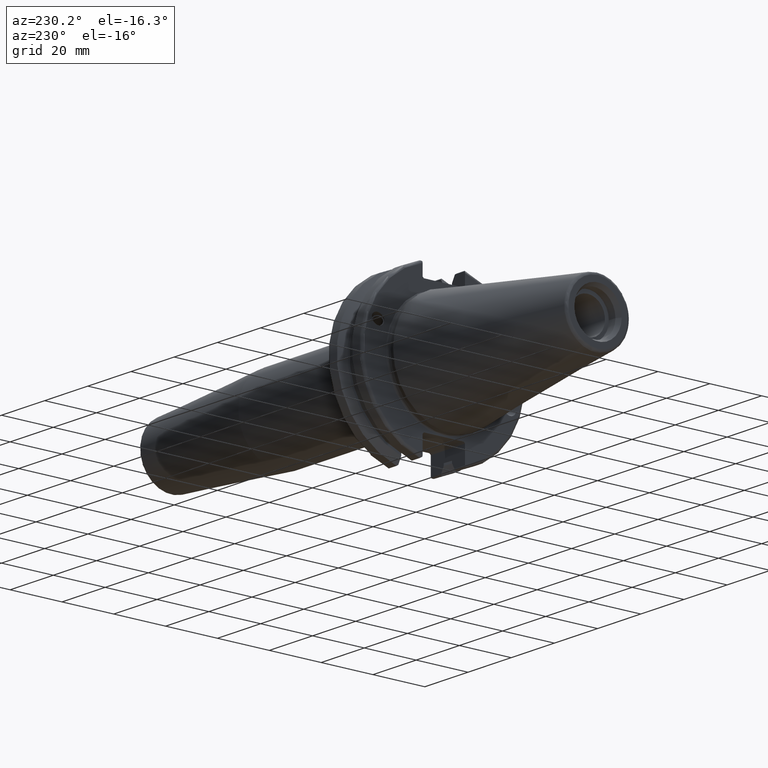
[diagram: clean part render]
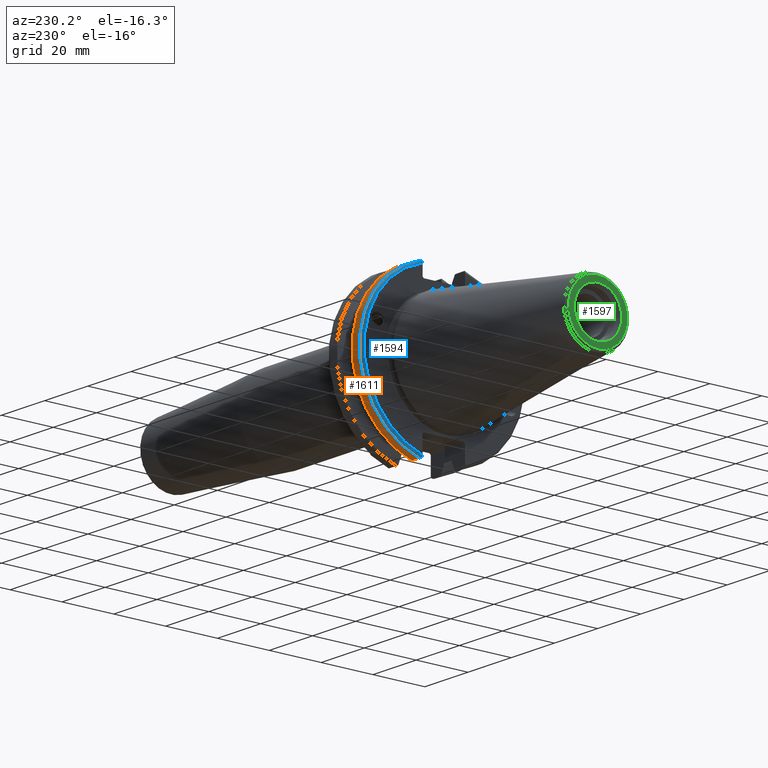
[diagram: same view with three faces highlighted in distinct colors, each labeled with its STEP entity id]
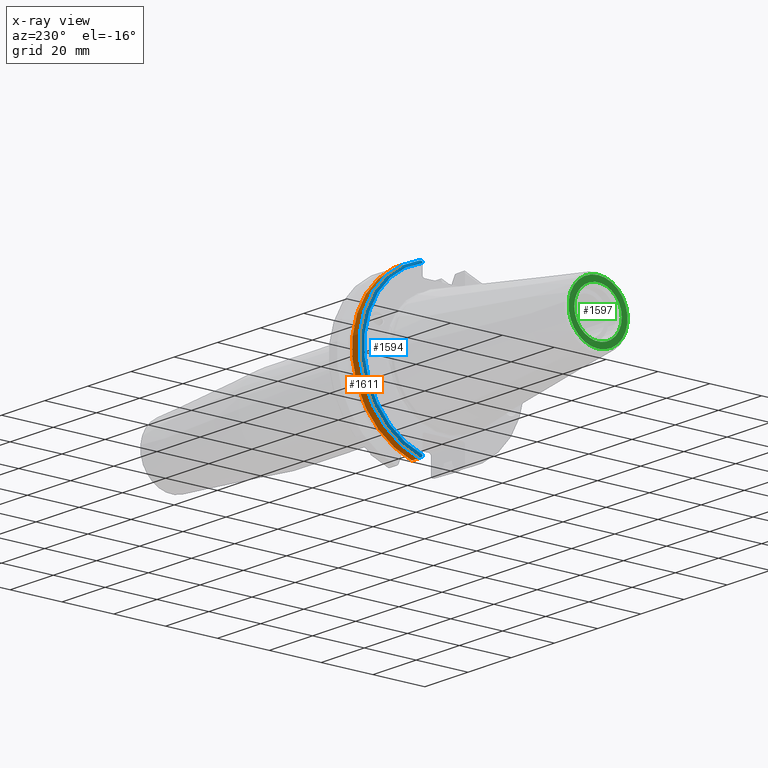
[diagram: x-ray of the same camera — body ghosted, the three highlighted faces saturated]
A machine part, auxiliary view with three faces highlighted in distinct colors.
The next image is the same camera in x-ray (body ghosted, the three faces saturated) — at least one of them is partly hidden behind the body in this view.
Their STEP definitions:

[orange] entity #1611 — the highlighted cylindrical surface (partial cylindrical patch) has radius 31.75 mm, axis along (1, 0, 0).
#170=CYLINDRICAL_SURFACE('',#1810,31.75);
#250=FACE_OUTER_BOUND('',#357,.T.);
#357=EDGE_LOOP('',(#1450,#1451,#1452,#1453));
#452=LINE('',#3011,#550);
#467=LINE('',#3064,#565);
#550=VECTOR('',#2191,10.);
#565=VECTOR('',#2250,10.);
#608=CIRCLE('',#1742,31.75);
#628=CIRCLE('',#1786,31.75);
#735=VERTEX_POINT('',#2738);
#736=VERTEX_POINT('',#2742);
#787=VERTEX_POINT('',#2985);
#788=VERTEX_POINT('',#2994);
#923=EDGE_CURVE('',#735,#736,#608,.T.);
#1000=EDGE_CURVE('',#787,#788,#628,.T.);
#1003=EDGE_CURVE('',#788,#735,#452,.T.);
#1027=EDGE_CURVE('',#736,#787,#467,.T.);
#1450=ORIENTED_EDGE('',*,*,#1000,.F.);
#1451=ORIENTED_EDGE('',*,*,#1027,.F.);
#1452=ORIENTED_EDGE('',*,*,#923,.F.);
#1453=ORIENTED_EDGE('',*,*,#1003,.F.);
#1611=ADVANCED_FACE('',(#250),#170,.T.);
#1742=AXIS2_PLACEMENT_3D('',#2743,#2065,#2066);
#1786=AXIS2_PLACEMENT_3D('',#2995,#2187,#2188);
#1810=AXIS2_PLACEMENT_3D('',#3065,#2251,#2252);
#2065=DIRECTION('center_axis',(1.,0.,0.));
#2066=DIRECTION('ref_axis',(0.,0.,-1.));
#2187=DIRECTION('center_axis',(-1.,0.,0.));
#2188=DIRECTION('ref_axis',(0.,1.,1.60812264967664E-16));
#2191=DIRECTION('',(1.,0.,0.));
#2250=DIRECTION('',(-1.,0.,0.));
#2251=DIRECTION('center_axis',(1.,0.,0.));
#2252=DIRECTION('ref_axis',(0.,1.,0.));
#2738=CARTESIAN_POINT('',(7.60793323092436,8.67204822802685,-30.5427254764662));
#2742=CARTESIAN_POINT('',(7.60793323092436,8.67204822802685,30.5427254764662));
#2743=CARTESIAN_POINT('Origin',(7.60793323092436,0.,0.));
#2985=CARTESIAN_POINT('',(4.175,8.67204822802685,30.5427254764662));
#2994=CARTESIAN_POINT('',(4.175,8.67204822802685,-30.5427254764662));
#2995=CARTESIAN_POINT('Origin',(4.175,0.,0.));
#3011=CARTESIAN_POINT('',(5.39146661546218,8.67204822802685,-30.5427254764662));
#3064=CARTESIAN_POINT('',(5.39146661546218,8.67204822802685,30.5427254764662));
#3065=CARTESIAN_POINT('Origin',(5.39146661546218,0.,0.));

[blue] entity #1594 — the highlighted toroidal blend (fillet) surface has major radius 30.75 mm and minor (blend) radius 1 mm.
#49=B_SPLINE_CURVE_WITH_KNOTS('',3,(#2869,#2870,#2871,#2872,#2873,#2874),
 .UNSPECIFIED.,.F.,.F.,(4,2,4),(0.0977210450333169,0.111963554372601,0.150804064902975),
 .UNSPECIFIED.);
#58=B_SPLINE_CURVE_WITH_KNOTS('',3,(#2986,#2987,#2988,#2989,#2990,#2991,
#2992,#2993),.UNSPECIFIED.,.F.,.F.,(4,2,2,4),(-0.104180282751876,-0.072978474246144,
-0.0343524753874979,0.),.UNSPECIFIED.);
#59=B_SPLINE_CURVE_WITH_KNOTS('',3,(#2996,#2997,#2998,#2999,#3000,#3001,
#3002,#3003),.UNSPECIFIED.,.F.,.F.,(4,2,2,4),(0.,0.0343524753874975,0.0729784742461445,
0.104180282751877),.UNSPECIFIED.);
#60=B_SPLINE_CURVE_WITH_KNOTS('',3,(#3004,#3005,#3006,#3007,#3008,#3009),
 .UNSPECIFIED.,.F.,.F.,(4,2,4),(0.452741154494498,0.491581665024872,0.505824174364157),
 .UNSPECIFIED.);
#122=TOROIDAL_SURFACE('',#1785,30.75,1.);
#233=FACE_OUTER_BOUND('',#339,.T.);
#339=EDGE_LOOP('',(#1372,#1373,#1374,#1375,#1376,#1377));
#622=CIRCLE('',#1768,30.75);
#628=CIRCLE('',#1786,31.75);
#757=VERTEX_POINT('',#2807);
#758=VERTEX_POINT('',#2809);
#770=VERTEX_POINT('',#2868);
#786=VERTEX_POINT('',#2984);
#787=VERTEX_POINT('',#2985);
#788=VERTEX_POINT('',#2994);
#953=EDGE_CURVE('',#758,#757,#622,.T.);
#970=EDGE_CURVE('',#770,#758,#49,.T.);
#999=EDGE_CURVE('',#786,#787,#58,.T.);
#1000=EDGE_CURVE('',#787,#788,#628,.T.);
#1001=EDGE_CURVE('',#788,#770,#59,.T.);
#1002=EDGE_CURVE('',#757,#786,#60,.T.);
#1372=ORIENTED_EDGE('',*,*,#999,.T.);
#1373=ORIENTED_EDGE('',*,*,#1000,.T.);
#1374=ORIENTED_EDGE('',*,*,#1001,.T.);
#1375=ORIENTED_EDGE('',*,*,#970,.T.);
#1376=ORIENTED_EDGE('',*,*,#953,.T.);
#1377=ORIENTED_EDGE('',*,*,#1002,.T.);
#1594=ADVANCED_FACE('',(#233),#122,.T.);
#1768=AXIS2_PLACEMENT_3D('',#2810,#2130,#2131);
#1785=AXIS2_PLACEMENT_3D('',#2983,#2185,#2186);
#1786=AXIS2_PLACEMENT_3D('',#2995,#2187,#2188);
#2130=DIRECTION('center_axis',(1.,0.,0.));
#2131=DIRECTION('ref_axis',(0.,1.,1.60812264967664E-16));
#2185=DIRECTION('center_axis',(1.,0.,0.));
#2186=DIRECTION('ref_axis',(0.,0.,-1.));
#2187=DIRECTION('center_axis',(-1.,0.,0.));
#2188=DIRECTION('ref_axis',(0.,1.,1.60812264967664E-16));
#2807=CARTESIAN_POINT('',(3.175,8.19,29.6392712461019));
#2809=CARTESIAN_POINT('',(3.175,8.18999999999999,-29.6392712461019));
#2810=CARTESIAN_POINT('Origin',(3.175,0.,0.));
#2868=CARTESIAN_POINT('',(3.31912772509028,8.19,-30.1755016258903));
#2869=CARTESIAN_POINT('Ctrl Pts',(3.31912772509028,8.19,-30.1755016258903));
#2870=CARTESIAN_POINT('Ctrl Pts',(3.29318362718666,8.19,-30.131014531546));
#2871=CARTESIAN_POINT('Ctrl Pts',(3.27103565282437,8.19,-30.0852355256475));
#2872=CARTESIAN_POINT('Ctrl Pts',(3.20451443291695,8.19,-29.9212724384851));
#2873=CARTESIAN_POINT('Ctrl Pts',(3.175,8.19,-29.7687396145364));
#2874=CARTESIAN_POINT('Ctrl Pts',(3.175,8.19,-29.6392712461019));
#2983=CARTESIAN_POINT('Origin',(4.175,0.,0.));
#2984=CARTESIAN_POINT('',(3.31912772509028,8.19,30.1755016258903));
#2985=CARTESIAN_POINT('',(4.175,8.67204822802685,30.5427254764662));
#2986=CARTESIAN_POINT('Ctrl Pts',(3.31912772509028,8.19,30.1755016258903));
#2987=CARTESIAN_POINT('Ctrl Pts',(3.36755369570114,8.2703682833078,30.2367261024977));
#2988=CARTESIAN_POINT('Ctrl Pts',(3.43232973376814,8.34909446036477,30.2966996242308));
#2989=CARTESIAN_POINT('Ctrl Pts',(3.58532758094931,8.48862804755884,30.4029961692546));
#2990=CARTESIAN_POINT('Ctrl Pts',(3.70655857052286,8.56482138642532,30.4610401774263));
#2991=CARTESIAN_POINT('Ctrl Pts',(3.92668295662254,8.6471881193939,30.5237870709558));
#2992=CARTESIAN_POINT('Ctrl Pts',(4.06049174870834,8.67204822802686,30.5427254764662));
#2993=CARTESIAN_POINT('Ctrl Pts',(4.175,8.67204822802686,30.5427254764662));
#2994=CARTESIAN_POINT('',(4.175,8.67204822802685,-30.5427254764662));
#2995=CARTESIAN_POINT('Origin',(4.175,0.,0.));
#2996=CARTESIAN_POINT('Ctrl Pts',(4.175,8.67204822802685,-30.5427254764662));
#2997=CARTESIAN_POINT('Ctrl Pts',(4.06049174870834,8.67204822802685,-30.5427254764662));
#2998=CARTESIAN_POINT('Ctrl Pts',(3.92668295662254,8.6471881193939,-30.5237870709558));
#2999=CARTESIAN_POINT('Ctrl Pts',(3.70655857052286,8.56482138642533,-30.4610401774263));
#3000=CARTESIAN_POINT('Ctrl Pts',(3.58532758094931,8.48862804755884,-30.4029961692546));
#3001=CARTESIAN_POINT('Ctrl Pts',(3.43232973376814,8.34909446036477,-30.2966996242308));
#3002=CARTESIAN_POINT('Ctrl Pts',(3.36755369570113,8.2703682833078,-30.2367261024977));
#3003=CARTESIAN_POINT('Ctrl Pts',(3.31912772509028,8.18999999999999,-30.1755016258903));
#3004=CARTESIAN_POINT('Ctrl Pts',(3.175,8.19,29.6392712461018));
#3005=CARTESIAN_POINT('Ctrl Pts',(3.175,8.19,29.7687396145364));
#3006=CARTESIAN_POINT('Ctrl Pts',(3.20451443291695,8.19,29.9212724384851));
#3007=CARTESIAN_POINT('Ctrl Pts',(3.27103565282437,8.19,30.0852355256475));
#3008=CARTESIAN_POINT('Ctrl Pts',(3.29318362718666,8.19,30.131014531546));
#3009=CARTESIAN_POINT('Ctrl Pts',(3.31912772509028,8.19,30.1755016258903));

[green] entity #1597 — the highlighted planar face has unit normal (-1, 0, 0).
#76=FACE_BOUND('',#343,.T.);
#99=PLANE('',#1793);
#236=FACE_OUTER_BOUND('',#342,.T.);
#342=EDGE_LOOP('',(#1387));
#343=EDGE_LOOP('',(#1388));
#632=CIRCLE('',#1792,11.4071305970304);
#633=CIRCLE('',#1794,9.15);
#791=VERTEX_POINT('',#3017);
#792=VERTEX_POINT('',#3021);
#1007=EDGE_CURVE('',#791,#791,#632,.T.);
#1008=EDGE_CURVE('',#792,#792,#633,.T.);
#1387=ORIENTED_EDGE('',*,*,#1007,.F.);
#1388=ORIENTED_EDGE('',*,*,#1008,.T.);
#1597=ADVANCED_FACE('',(#236,#76),#99,.T.);
#1792=AXIS2_PLACEMENT_3D('',#3019,#2200,#2201);
#1793=AXIS2_PLACEMENT_3D('',#3020,#2202,#2203);
#1794=AXIS2_PLACEMENT_3D('',#3022,#2204,#2205);
#2200=DIRECTION('center_axis',(1.,0.,0.));
#2201=DIRECTION('ref_axis',(0.,-1.,1.83697019872103E-16));
#2202=DIRECTION('center_axis',(-1.,0.,0.));
#2203=DIRECTION('ref_axis',(0.,0.,1.));
#2204=DIRECTION('center_axis',(1.,0.,0.));
#2205=DIRECTION('ref_axis',(0.,0.,-1.));
#3017=CARTESIAN_POINT('',(-68.25,-1.39697059731091E-15,11.4071305970304));
#3019=CARTESIAN_POINT('Origin',(-68.25,0.,0.));
#3020=CARTESIAN_POINT('Origin',(-68.25,12.271875,0.));
#3021=CARTESIAN_POINT('',(-68.25,-9.15,-1.12055182121983E-15));
#3022=CARTESIAN_POINT('Origin',(-68.25,0.,0.));